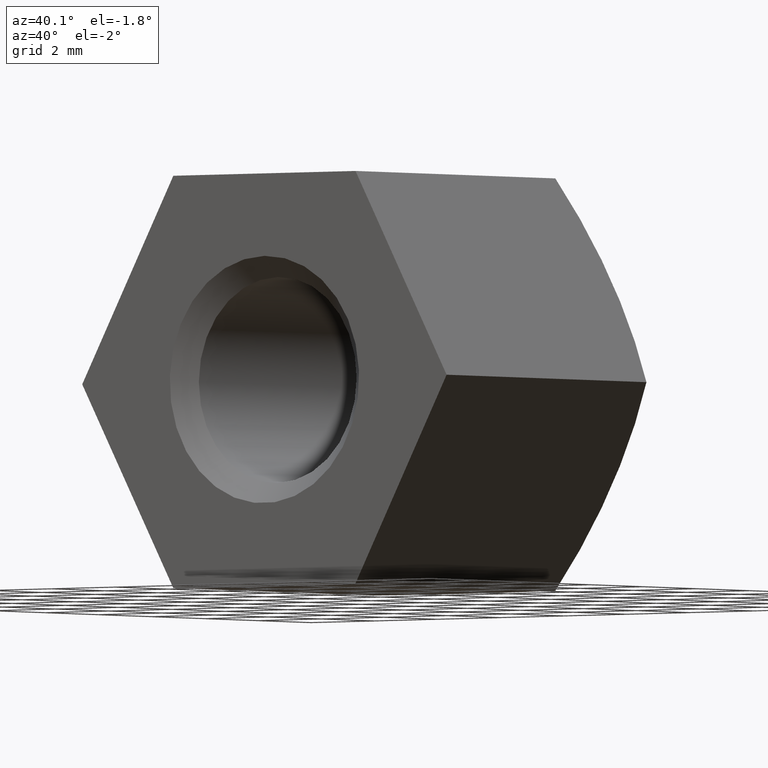
[diagram: clean part render]
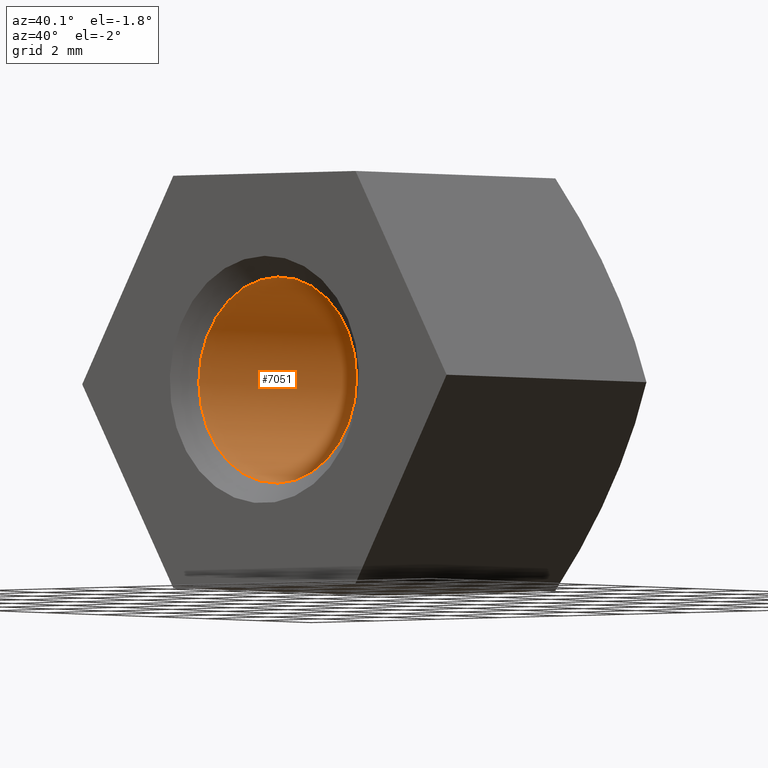
[diagram: same view with one face highlighted and labeled with its STEP entity id]
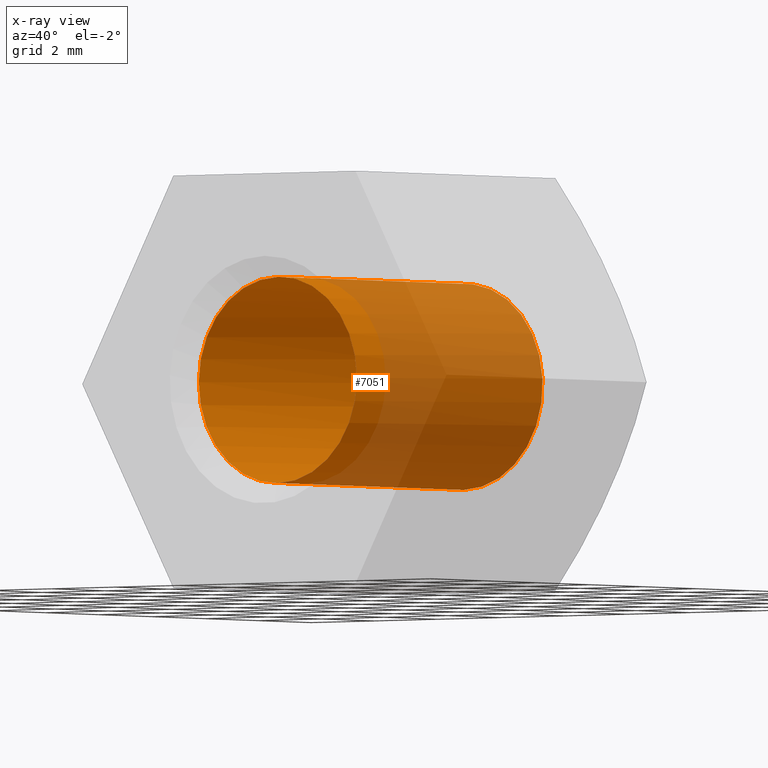
[diagram: x-ray of the same camera — body ghosted, the highlighted face saturated]
A machine part, auxiliary view. The second image highlights one B-rep face of the part: STEP entity #7051.
The next image is the same camera in x-ray: the body ghosted, the highlighted face saturated — about 51% of this face is hidden behind the body in this view.
In plain terms, the highlighted cylindrical surface (bore or boss wall) has radius 2.5 mm, axis along (-0, -1, -0).
Its self-contained STEP definition (entity closure, byte-faithful):
#149 = EDGE_CURVE ( 'NONE', #7589, #7589, #13601, .T. ) ;
#188 = FACE_OUTER_BOUND ( 'NONE', #10606, .T. ) ;
#876 = DIRECTION ( 'NONE',  ( -0.000000000000000000, -1.000000000000000000, -0.000000000000000000 ) ) ;
#1026 = AXIS2_PLACEMENT_3D ( 'NONE', #10848, #876, #4126 ) ;
#2279 = DIRECTION ( 'NONE',  ( 0.000000000000000000, -1.000000000000000000, 0.000000000000000000 ) ) ;
#3032 = EDGE_CURVE ( 'NONE', #12595, #12595, #5462, .T. ) ;
#4126 = DIRECTION ( 'NONE',  ( 0.000000000000000000, 0.000000000000000000, -1.000000000000000000 ) ) ;
#4367 = ORIENTED_EDGE ( 'NONE', *, *, #149, .T. ) ;
#4802 = EDGE_LOOP ( 'NONE', ( #8722 ) ) ;
#5462 = CIRCLE ( 'NONE', #1026, 2.499999999999987566 ) ;
#5563 = CARTESIAN_POINT ( 'NONE',  ( 0.000000000000000000, 0.5000000000000017764, 0.000000000000000000 ) ) ;
#5608 = DIRECTION ( 'NONE',  ( 0.000000000000000000, 0.000000000000000000, 1.000000000000000000 ) ) ;
#5751 = FACE_OUTER_BOUND ( 'NONE', #4802, .T. ) ;
#5833 = AXIS2_PLACEMENT_3D ( 'NONE', #5563, #2279, #5608 ) ;
#6269 = CYLINDRICAL_SURFACE ( 'NONE', #12254, 2.499999999999988898 ) ;
#7051 = ADVANCED_FACE ( 'NONE', ( #188, #5751 ), #6269, .F. ) ;
#7589 = VERTEX_POINT ( 'NONE', #10385 ) ;
#8722 = ORIENTED_EDGE ( 'NONE', *, *, #3032, .F. ) ;
#9620 = DIRECTION ( 'NONE',  ( 0.000000000000000000, 0.000000000000000000, -1.000000000000000000 ) ) ;
#10385 = CARTESIAN_POINT ( 'NONE',  ( 0.000000000000000000, 0.5000000000000017764, 2.499999999999988898 ) ) ;
#10606 = EDGE_LOOP ( 'NONE', ( #4367 ) ) ;
#10700 = DIRECTION ( 'NONE',  ( -0.000000000000000000, -1.000000000000000000, -0.000000000000000000 ) ) ;
#10786 = CARTESIAN_POINT ( 'NONE',  ( 0.000000000000000000, 0.000000000000000000, 0.000000000000000000 ) ) ;
#10848 = CARTESIAN_POINT ( 'NONE',  ( 0.000000000000000000, 7.500000000000007105, 0.000000000000000000 ) ) ;
#12254 = AXIS2_PLACEMENT_3D ( 'NONE', #10786, #10700, #9620 ) ;
#12595 = VERTEX_POINT ( 'NONE', #13813 ) ;
#13601 = CIRCLE ( 'NONE', #5833, 2.499999999999988898 ) ;
#13813 = CARTESIAN_POINT ( 'NONE',  ( 0.000000000000000000, 7.500000000000007105, -2.499999999999987566 ) ) ;